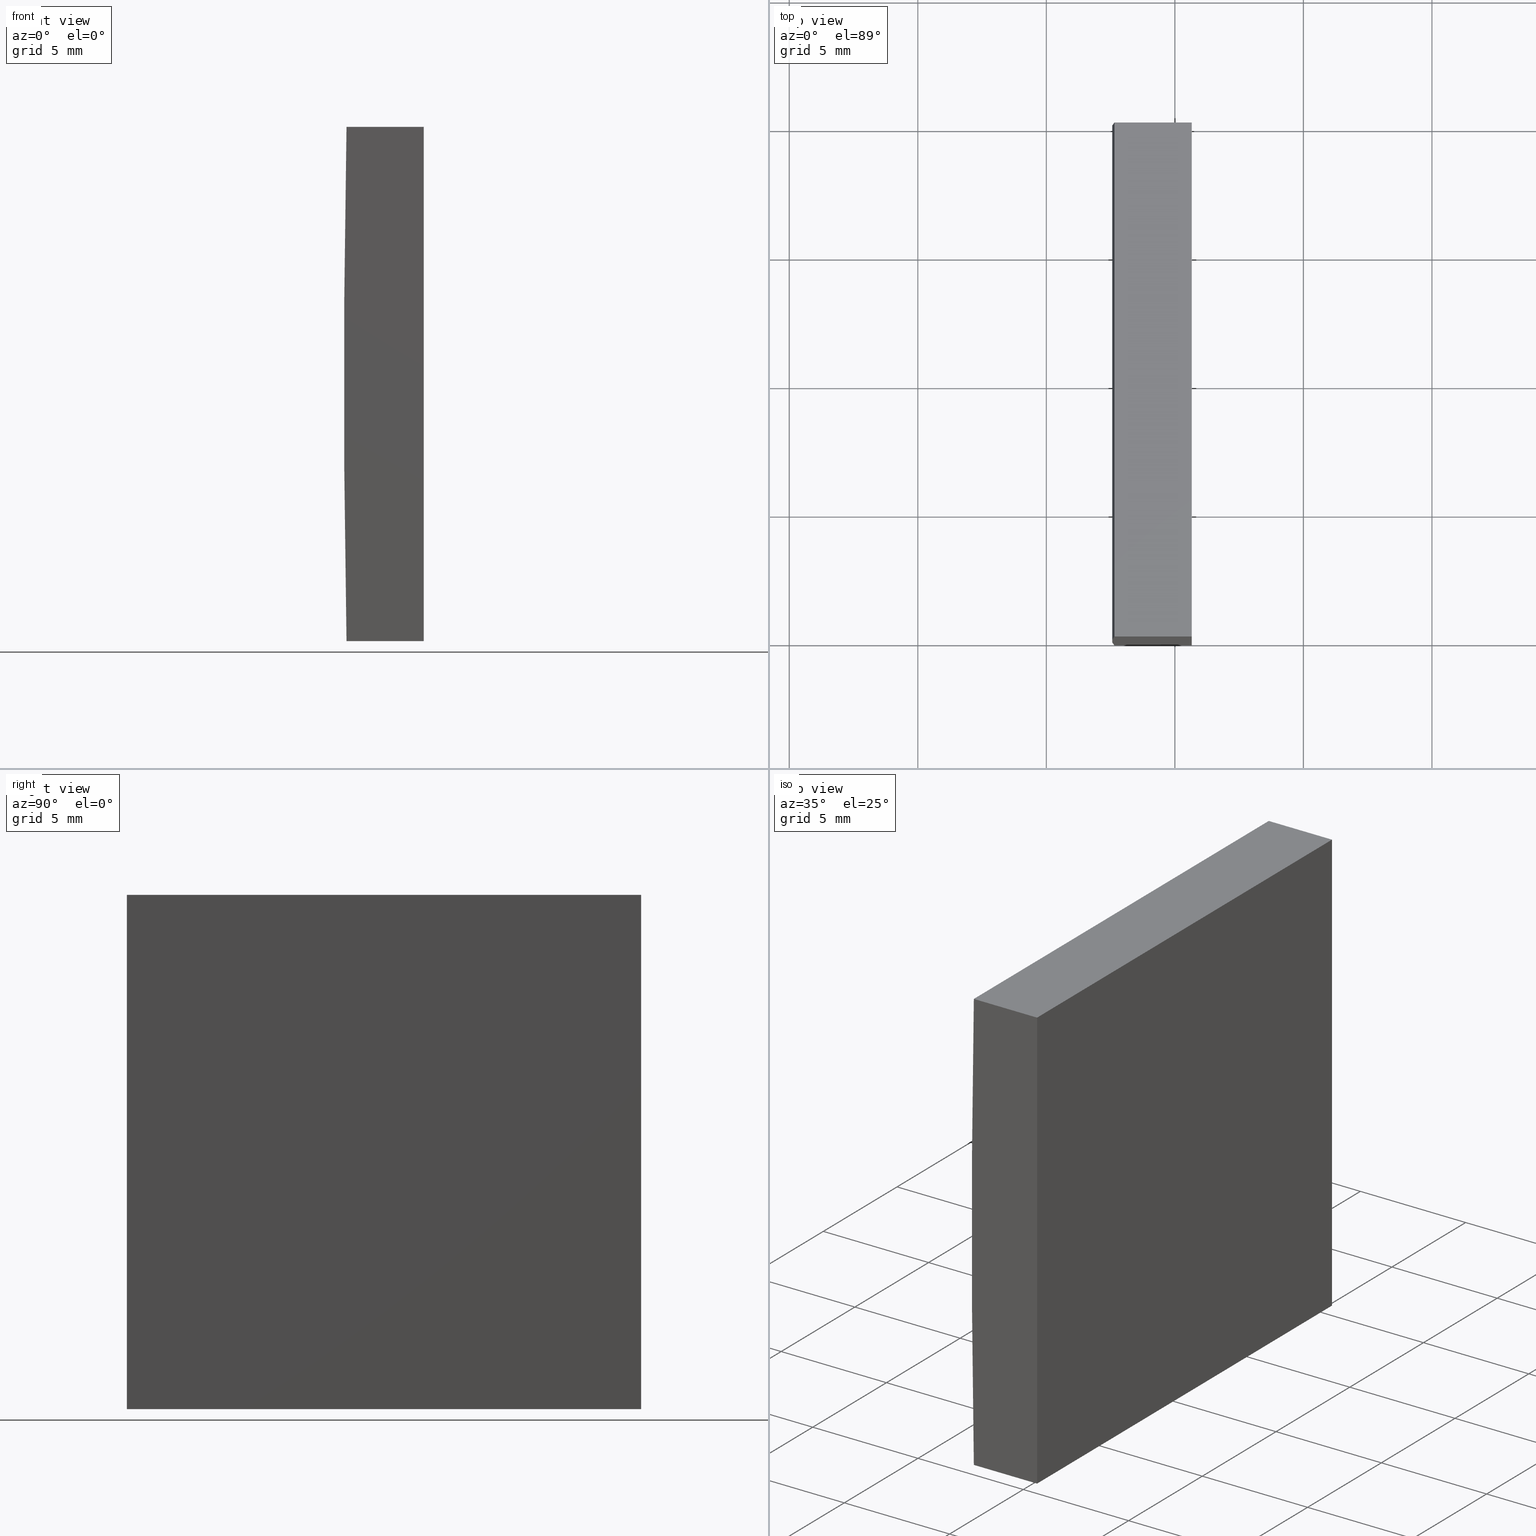
[diagram: canonical four-view strip — front | top / right | iso, engineering-drawing reading convention]
A machine part, canonical four-view strip (front | top / right | iso — engineering-drawing reading convention). The complete STEP part file that produces these views, byte-faithful:
ISO-10303-21;
HEADER;
FILE_DESCRIPTION (( 'STEP AP214' ),
    '1' );
FILE_NAME ('155037.STEP',
    '2019-06-17T07:27:00',
    ( 'user' ),
    ( '΢���й�' ),
    'SwSTEP 2.0',
    'SolidWorks 2016',
    '' );
FILE_SCHEMA (( 'AUTOMOTIVE_DESIGN' ));
ENDSEC;

DATA;
#1 = FACE_OUTER_BOUND ( 'NONE', #31, .T. ) ;
#2 = EDGE_CURVE ( 'NONE', #50, #194, #87, .T. ) ;
#3 = UNCERTAINTY_MEASURE_WITH_UNIT (LENGTH_MEASURE( 1.000000000000000100E-005 ), #176, 'distance_accuracy_value', 'NONE');
#4 = ADVANCED_FACE ( 'NONE', ( #120 ), #67, .F. ) ;
#5 = PRODUCT_DEFINITION_SHAPE ( 'NONE', 'NONE',  #15 ) ;
#6 = EDGE_CURVE ( 'NONE', #66, #189, #25, .T. ) ;
#7 = DIRECTION ( 'NONE',  ( 0.0000000000000000000, 0.0000000000000000000, 1.000000000000000000 ) ) ;
#8 = LINE ( 'NONE', #178, #81 ) ;
#9 = DIRECTION ( 'NONE',  ( -0.0000000000000000000, -1.000000000000000000, -0.0000000000000000000 ) ) ;
#10 =( GEOMETRIC_REPRESENTATION_CONTEXT ( 3 ) GLOBAL_UNCERTAINTY_ASSIGNED_CONTEXT ( ( #152 ) ) GLOBAL_UNIT_ASSIGNED_CONTEXT ( ( #35, #56, #74 ) ) REPRESENTATION_CONTEXT ( 'NONE', 'WORKASPACE' ) );
#11 = EDGE_CURVE ( 'NONE', #127, #183, #116, .T. ) ;
#12 = CARTESIAN_POINT ( 'NONE',  ( -509.3447956651486900, 20.00000000000000000, -10.00000000000000400 ) ) ;
#13 = FACE_OUTER_BOUND ( 'NONE', #42, .T. ) ;
#14 = CARTESIAN_POINT ( 'NONE',  ( -512.3480373813197300, 20.00000000000000000, -10.00000000000000000 ) ) ;
#15 = PRODUCT_DEFINITION ( 'δ֪', '', #169, #34 ) ;
#16 = ORIENTED_EDGE ( 'NONE', *, *, #2, .F. ) ;
#17 = CARTESIAN_POINT ( 'NONE',  ( -512.3480373813197300, 20.00000000000000000, -10.00000000000000000 ) ) ;
#18 = ORIENTED_EDGE ( 'NONE', *, *, #157, .F. ) ;
#19 =( NAMED_UNIT ( * ) PLANE_ANGLE_UNIT ( ) SI_UNIT ( $, .RADIAN. ) );
#20 = PLANE ( 'NONE',  #195 ) ;
#21 = UNCERTAINTY_MEASURE_WITH_UNIT (LENGTH_MEASURE( 1.000000000000000100E-005 ), #199, 'distance_accuracy_value', 'NONE');
#22 = COLOUR_RGB ( '',1.000000000000000000, 1.000000000000000000, 1.000000000000000000 ) ;
#23 = CYLINDRICAL_SURFACE ( 'NONE', #78, 516.7999999999998400 ) ;
#24 = CARTESIAN_POINT ( 'NONE',  ( -509.3447956651486900, 20.00000000000000000, 10.00000000000000000 ) ) ;
#25 = LINE ( 'NONE', #108, #124 ) ;
#26 = FACE_OUTER_BOUND ( 'NONE', #147, .T. ) ;
#27 = DIRECTION ( 'NONE',  ( -0.0000000000000000000, -1.000000000000000000, -0.0000000000000000000 ) ) ;
#28 = DIRECTION ( 'NONE',  ( 0.0000000000000000000, 1.000000000000000000, 0.0000000000000000000 ) ) ;
#29 = PRODUCT_RELATED_PRODUCT_CATEGORY ( 'part', '', ( #82 ) ) ;
#30 = PRODUCT_CONTEXT ( 'NONE', #39, 'mechanical' ) ;
#31 = EDGE_LOOP ( 'NONE', ( #121, #93, #38, #175 ) ) ;
#32 = PRESENTATION_STYLE_ASSIGNMENT (( #117 ) ) ;
#33 = EDGE_CURVE ( 'NONE', #66, #194, #122, .T. ) ;
#34 = PRODUCT_DEFINITION_CONTEXT ( 'detailed design', #187, 'design' ) ;
#35 =( LENGTH_UNIT ( ) NAMED_UNIT ( * ) SI_UNIT ( .MILLI., .METRE. ) );
#36 =( NAMED_UNIT ( * ) SI_UNIT ( $, .STERADIAN. ) SOLID_ANGLE_UNIT ( ) );
#37 = VECTOR ( 'NONE', #196, 1000.000000000000000 ) ;
#38 = ORIENTED_EDGE ( 'NONE', *, *, #162, .T. ) ;
#39 = APPLICATION_CONTEXT ( 'automotive_design' ) ;
#40 = PLANE ( 'NONE',  #71 ) ;
#41 = CARTESIAN_POINT ( 'NONE',  ( 4.355204334851265500, 20.00000000000000000, 4.286263797015675000E-017 ) ) ;
#42 = EDGE_LOOP ( 'NONE', ( #141, #171, #48, #92 ) ) ;
#43 = ORIENTED_EDGE ( 'NONE', *, *, #55, .F. ) ;
#44 = DIRECTION ( 'NONE',  ( -1.000000000000000000, 0.0000000000000000000, 0.0000000000000000000 ) ) ;
#45 = CARTESIAN_POINT ( 'NONE',  ( -512.3480373813197300, 0.0000000000000000000, 10.00000000000000000 ) ) ;
#46 = CARTESIAN_POINT ( 'NONE',  ( -509.3447956651486900, 20.00000000000000000, 10.00000000000000000 ) ) ;
#47 = DIRECTION ( 'NONE',  ( 1.000000000000000000, 0.0000000000000000000, 0.0000000000000000000 ) ) ;
#48 = ORIENTED_EDGE ( 'NONE', *, *, #11, .F. ) ;
#49 = CARTESIAN_POINT ( 'NONE',  ( -512.3480373813197300, 0.0000000000000000000, 10.00000000000000000 ) ) ;
#50 = VERTEX_POINT ( 'NONE', #64 ) ;
#51 = CIRCLE ( 'NONE', #173, 516.7999999999998400 ) ;
#52 = ORIENTED_EDGE ( 'NONE', *, *, #2, .T. ) ;
#53 = ORIENTED_EDGE ( 'NONE', *, *, #109, .F. ) ;
#54 = VECTOR ( 'NONE', #88, 1000.000000000000000 ) ;
#55 = EDGE_CURVE ( 'NONE', #144, #180, #8, .T. ) ;
#56 =( NAMED_UNIT ( * ) PLANE_ANGLE_UNIT ( ) SI_UNIT ( $, .RADIAN. ) );
#57 = ORIENTED_EDGE ( 'NONE', *, *, #63, .T. ) ;
#58 = MECHANICAL_DESIGN_GEOMETRIC_PRESENTATION_REPRESENTATION (  '', ( #95 ), #179 ) ;
#59 = ADVANCED_FACE ( 'NONE', ( #155 ), #114, .F. ) ;
#60 = CARTESIAN_POINT ( 'NONE',  ( -512.3480373813197300, 20.00000000000000000, 10.00000000000000000 ) ) ;
#61 = ADVANCED_FACE ( 'NONE', ( #1 ), #40, .T. ) ;
#62 = SURFACE_STYLE_USAGE ( .BOTH. , #129 ) ;
#63 = EDGE_CURVE ( 'NONE', #194, #144, #164, .T. ) ;
#64 = CARTESIAN_POINT ( 'NONE',  ( -512.3480373813197300, 0.0000000000000000000, -10.00000000000000000 ) ) ;
#65 = AXIS2_PLACEMENT_3D ( 'NONE', #60, #136, #86 ) ;
#66 = VERTEX_POINT ( 'NONE', #110 ) ;
#67 = PLANE ( 'NONE',  #201 ) ;
#68 = CLOSED_SHELL ( 'NONE', ( #113, #59, #146, #98, #61, #4 ) ) ;
#69 = ORIENTED_EDGE ( 'NONE', *, *, #33, .T. ) ;
#70 = FILL_AREA_STYLE_COLOUR ( '', #22 ) ;
#71 = AXIS2_PLACEMENT_3D ( 'NONE', #158, #182, #165 ) ;
#72 = DIRECTION ( 'NONE',  ( 1.155234003734118200E-015, -0.0000000000000000000, 1.000000000000000000 ) ) ;
#73 = AXIS2_PLACEMENT_3D ( 'NONE', #130, #97, #47 ) ;
#74 =( NAMED_UNIT ( * ) SI_UNIT ( $, .STERADIAN. ) SOLID_ANGLE_UNIT ( ) );
#75 = LINE ( 'NONE', #46, #54 ) ;
#76 = ORIENTED_EDGE ( 'NONE', *, *, #107, .T. ) ;
#77 =( NAMED_UNIT ( * ) PLANE_ANGLE_UNIT ( ) SI_UNIT ( $, .RADIAN. ) );
#78 = AXIS2_PLACEMENT_3D ( 'NONE', #41, #9, #197 ) ;
#79 = DIRECTION ( 'NONE',  ( -0.0000000000000000000, -0.0000000000000000000, -1.000000000000000000 ) ) ;
#80 = CARTESIAN_POINT ( 'NONE',  ( 4.355204334851265500, 0.0000000000000000000, 4.286263797015675000E-017 ) ) ;
#81 = VECTOR ( 'NONE', #79, 1000.000000000000000 ) ;
#82 = PRODUCT ( '155037', '155037', '', ( #30 ) ) ;
#83 = DIRECTION ( 'NONE',  ( 0.0000000000000000000, 0.0000000000000000000, 1.000000000000000000 ) ) ;
#84 = PRESENTATION_LAYER_ASSIGNMENT (  '', '', ( #95 ) ) ;
#85 = MECHANICAL_DESIGN_GEOMETRIC_PRESENTATION_REPRESENTATION (  '', ( #133 ), #106 ) ;
#86 = DIRECTION ( 'NONE',  ( -1.000000000000000000, 0.0000000000000000000, -0.0000000000000000000 ) ) ;
#87 = CIRCLE ( 'NONE', #170, 516.7999999999998400 ) ;
#88 = DIRECTION ( 'NONE',  ( -0.0000000000000000000, -1.000000000000000000, -0.0000000000000000000 ) ) ;
#89 = CARTESIAN_POINT ( 'NONE',  ( -509.3447956651486900, 0.0000000000000000000, 10.00000000000000000 ) ) ;
#90 = CARTESIAN_POINT ( 'NONE',  ( -509.3447956651486900, 0.0000000000000000000, -10.00000000000000400 ) ) ;
#91 = DIRECTION ( 'NONE',  ( -0.0000000000000000000, -1.000000000000000000, -0.0000000000000000000 ) ) ;
#92 = ORIENTED_EDGE ( 'NONE', *, *, #109, .T. ) ;
#93 = ORIENTED_EDGE ( 'NONE', *, *, #6, .T. ) ;
#94 = SURFACE_STYLE_FILL_AREA ( #198 ) ;
#95 = STYLED_ITEM ( 'NONE', ( #32 ), #202 ) ;
#96 = ORIENTED_EDGE ( 'NONE', *, *, #118, .T. ) ;
#97 = DIRECTION ( 'NONE',  ( 0.0000000000000000000, 0.0000000000000000000, 1.000000000000000000 ) ) ;
#98 = ADVANCED_FACE ( 'NONE', ( #13 ), #174, .F. ) ;
#99 = DIRECTION ( 'NONE',  ( 0.0000000000000000000, 1.000000000000000000, 0.0000000000000000000 ) ) ;
#100 = ADVANCED_BREP_SHAPE_REPRESENTATION ( '155037', ( #202, #73 ), #10 ) ;
#101 = DIRECTION ( 'NONE',  ( 1.000000000000000000, 0.0000000000000000000, -1.155234003734118200E-015 ) ) ;
#102 = ORIENTED_EDGE ( 'NONE', *, *, #118, .F. ) ;
#103 = CARTESIAN_POINT ( 'NONE',  ( 4.355204334851265500, 0.0000000000000000000, 4.286263797015675000E-017 ) ) ;
#104 = FILL_AREA_STYLE ('',( #70 ) ) ;
#105 = DIRECTION ( 'NONE',  ( -1.000000000000000000, -0.0000000000000000000, 1.155234003734118200E-015 ) ) ;
#106 =( GEOMETRIC_REPRESENTATION_CONTEXT ( 3 ) GLOBAL_UNCERTAINTY_ASSIGNED_CONTEXT ( ( #3 ) ) GLOBAL_UNIT_ASSIGNED_CONTEXT ( ( #176, #77, #36 ) ) REPRESENTATION_CONTEXT ( 'NONE', 'WORKASPACE' ) );
#107 = EDGE_CURVE ( 'NONE', #183, #50, #184, .T. ) ;
#108 = CARTESIAN_POINT ( 'NONE',  ( -512.3480373813197300, 20.00000000000000000, 10.00000000000000000 ) ) ;
#109 = EDGE_CURVE ( 'NONE', #127, #180, #142, .T. ) ;
#110 = CARTESIAN_POINT ( 'NONE',  ( -512.3480373813197300, 20.00000000000000000, 10.00000000000000000 ) ) ;
#111 = CARTESIAN_POINT ( 'NONE',  ( -512.3480373813197300, 20.00000000000000000, 10.00000000000000000 ) ) ;
#112 = VECTOR ( 'NONE', #105, 1000.000000000000000 ) ;
#113 = ADVANCED_FACE ( 'NONE', ( #203 ), #23, .T. ) ;
#114 = PLANE ( 'NONE',  #65 ) ;
#115 = CARTESIAN_POINT ( 'NONE',  ( -512.3480373813197300, 20.00000000000000000, -10.00000000000000000 ) ) ;
#116 = LINE ( 'NONE', #149, #112 ) ;
#117 = SURFACE_STYLE_USAGE ( .BOTH. , #134 ) ;
#118 = EDGE_CURVE ( 'NONE', #189, #144, #75, .T. ) ;
#119 = EDGE_LOOP ( 'NONE', ( #16, #18, #43, #167 ) ) ;
#120 = FACE_OUTER_BOUND ( 'NONE', #119, .T. ) ;
#121 = ORIENTED_EDGE ( 'NONE', *, *, #156, .T. ) ;
#122 = LINE ( 'NONE', #111, #132 ) ;
#123 = DIRECTION ( 'NONE',  ( 0.0000000000000000000, 1.000000000000000000, 0.0000000000000000000 ) ) ;
#124 = VECTOR ( 'NONE', #172, 1000.000000000000000 ) ;
#125 = COLOUR_RGB ( '',1.000000000000000000, 1.000000000000000000, 1.000000000000000000 ) ;
#126 = CARTESIAN_POINT ( 'NONE',  ( -509.3447956651486900, 20.00000000000000000, -10.00000000000000400 ) ) ;
#127 = VERTEX_POINT ( 'NONE', #181 ) ;
#128 = AXIS2_PLACEMENT_3D ( 'NONE', #14, #72, #101 ) ;
#129 = SURFACE_SIDE_STYLE ('',( #135 ) ) ;
#130 = CARTESIAN_POINT ( 'NONE',  ( 0.0000000000000000000, 0.0000000000000000000, 0.0000000000000000000 ) ) ;
#131 = DIRECTION ( 'NONE',  ( -0.0000000000000000000, -1.000000000000000000, -0.0000000000000000000 ) ) ;
#132 = VECTOR ( 'NONE', #131, 1000.000000000000000 ) ;
#133 = STYLED_ITEM ( 'NONE', ( #192 ), #100 ) ;
#134 = SURFACE_SIDE_STYLE ('',( #94 ) ) ;
#135 = SURFACE_STYLE_FILL_AREA ( #104 ) ;
#136 = DIRECTION ( 'NONE',  ( 0.0000000000000000000, 0.0000000000000000000, -1.000000000000000000 ) ) ;
#137 = VECTOR ( 'NONE', #27, 1000.000000000000000 ) ;
#138 =( NAMED_UNIT ( * ) SI_UNIT ( $, .STERADIAN. ) SOLID_ANGLE_UNIT ( ) );
#139 = LINE ( 'NONE', #166, #37 ) ;
#140 = DIRECTION ( 'NONE',  ( 0.0000000000000000000, 0.0000000000000000000, 1.000000000000000000 ) ) ;
#141 = ORIENTED_EDGE ( 'NONE', *, *, #157, .T. ) ;
#142 = LINE ( 'NONE', #126, #137 ) ;
#143 = ORIENTED_EDGE ( 'NONE', *, *, #55, .T. ) ;
#144 = VERTEX_POINT ( 'NONE', #89 ) ;
#145 = PRESENTATION_LAYER_ASSIGNMENT (  '', '', ( #133 ) ) ;
#146 = ADVANCED_FACE ( 'NONE', ( #26 ), #20, .F. ) ;
#147 = EDGE_LOOP ( 'NONE', ( #143, #53, #190, #96 ) ) ;
#148 = VECTOR ( 'NONE', #185, 1000.000000000000000 ) ;
#149 = CARTESIAN_POINT ( 'NONE',  ( -512.3480373813197300, 20.00000000000000000, -10.00000000000000000 ) ) ;
#150 = APPLICATION_PROTOCOL_DEFINITION ( 'draft international standard', 'automotive_design', 1998, #39 ) ;
#151 = CARTESIAN_POINT ( 'NONE',  ( 4.355204334851265500, 20.00000000000000000, 4.286263797015675000E-017 ) ) ;
#152 = UNCERTAINTY_MEASURE_WITH_UNIT (LENGTH_MEASURE( 1.000000000000000100E-005 ), #35, 'distance_accuracy_value', 'NONE');
#153 = LINE ( 'NONE', #161, #148 ) ;
#154 = EDGE_LOOP ( 'NONE', ( #57, #102, #163, #69 ) ) ;
#155 = FACE_OUTER_BOUND ( 'NONE', #154, .T. ) ;
#156 = EDGE_CURVE ( 'NONE', #183, #66, #51, .T. ) ;
#157 = EDGE_CURVE ( 'NONE', #180, #50, #153, .T. ) ;
#158 = CARTESIAN_POINT ( 'NONE',  ( 4.355204334851265500, 20.00000000000000000, 4.286263797015675000E-017 ) ) ;
#159 = SHAPE_DEFINITION_REPRESENTATION ( #5, #100 ) ;
#160 = APPLICATION_PROTOCOL_DEFINITION ( 'draft international standard', 'automotive_design', 1998, #187 ) ;
#161 = CARTESIAN_POINT ( 'NONE',  ( -512.3480373813197300, 0.0000000000000000000, -10.00000000000000000 ) ) ;
#162 = EDGE_CURVE ( 'NONE', #189, #127, #139, .T. ) ;
#163 = ORIENTED_EDGE ( 'NONE', *, *, #6, .F. ) ;
#164 = LINE ( 'NONE', #45, #188 ) ;
#165 = DIRECTION ( 'NONE',  ( 0.0000000000000000000, -0.0000000000000000000, 1.000000000000000000 ) ) ;
#166 = CARTESIAN_POINT ( 'NONE',  ( -509.3447956651486900, 20.00000000000000000, -10.00000000000000400 ) ) ;
#167 = ORIENTED_EDGE ( 'NONE', *, *, #63, .F. ) ;
#168 = ORIENTED_EDGE ( 'NONE', *, *, #33, .F. ) ;
#169 = PRODUCT_DEFINITION_FORMATION_WITH_SPECIFIED_SOURCE ( '�κ�', '', #82, .NOT_KNOWN. ) ;
#170 = AXIS2_PLACEMENT_3D ( 'NONE', #103, #28, #83 ) ;
#171 = ORIENTED_EDGE ( 'NONE', *, *, #107, .F. ) ;
#172 = DIRECTION ( 'NONE',  ( 1.000000000000000000, 0.0000000000000000000, 0.0000000000000000000 ) ) ;
#173 = AXIS2_PLACEMENT_3D ( 'NONE', #151, #99, #7 ) ;
#174 = PLANE ( 'NONE',  #128 ) ;
#175 = ORIENTED_EDGE ( 'NONE', *, *, #11, .T. ) ;
#176 =( LENGTH_UNIT ( ) NAMED_UNIT ( * ) SI_UNIT ( .MILLI., .METRE. ) );
#177 = DIRECTION ( 'NONE',  ( 0.0000000000000000000, -0.0000000000000000000, 1.000000000000000000 ) ) ;
#178 = CARTESIAN_POINT ( 'NONE',  ( -509.3447956651486900, 0.0000000000000000000, -10.00000000000000400 ) ) ;
#179 =( GEOMETRIC_REPRESENTATION_CONTEXT ( 3 ) GLOBAL_UNCERTAINTY_ASSIGNED_CONTEXT ( ( #21 ) ) GLOBAL_UNIT_ASSIGNED_CONTEXT ( ( #199, #19, #138 ) ) REPRESENTATION_CONTEXT ( 'NONE', 'WORKASPACE' ) );
#180 = VERTEX_POINT ( 'NONE', #90 ) ;
#181 = CARTESIAN_POINT ( 'NONE',  ( -509.3447956651486900, 20.00000000000000000, -10.00000000000000400 ) ) ;
#182 = DIRECTION ( 'NONE',  ( 0.0000000000000000000, 1.000000000000000000, 0.0000000000000000000 ) ) ;
#183 = VERTEX_POINT ( 'NONE', #17 ) ;
#184 = LINE ( 'NONE', #115, #191 ) ;
#185 = DIRECTION ( 'NONE',  ( -1.000000000000000000, -0.0000000000000000000, 1.155234003734118200E-015 ) ) ;
#186 = DIRECTION ( 'NONE',  ( 1.000000000000000000, 0.0000000000000000000, 0.0000000000000000000 ) ) ;
#187 = APPLICATION_CONTEXT ( 'automotive_design' ) ;
#188 = VECTOR ( 'NONE', #186, 1000.000000000000000 ) ;
#189 = VERTEX_POINT ( 'NONE', #24 ) ;
#190 = ORIENTED_EDGE ( 'NONE', *, *, #162, .F. ) ;
#191 = VECTOR ( 'NONE', #91, 1000.000000000000000 ) ;
#192 = PRESENTATION_STYLE_ASSIGNMENT (( #62 ) ) ;
#193 = EDGE_LOOP ( 'NONE', ( #52, #168, #200, #76 ) ) ;
#194 = VERTEX_POINT ( 'NONE', #49 ) ;
#195 = AXIS2_PLACEMENT_3D ( 'NONE', #12, #44, #140 ) ;
#196 = DIRECTION ( 'NONE',  ( -0.0000000000000000000, -0.0000000000000000000, -1.000000000000000000 ) ) ;
#197 = DIRECTION ( 'NONE',  ( 0.0000000000000000000, 0.0000000000000000000, -1.000000000000000000 ) ) ;
#198 = FILL_AREA_STYLE ('',( #204 ) ) ;
#199 =( LENGTH_UNIT ( ) NAMED_UNIT ( * ) SI_UNIT ( .MILLI., .METRE. ) );
#200 = ORIENTED_EDGE ( 'NONE', *, *, #156, .F. ) ;
#201 = AXIS2_PLACEMENT_3D ( 'NONE', #80, #123, #177 ) ;
#202 = MANIFOLD_SOLID_BREP ( '͹̨-����1', #68 ) ;
#203 = FACE_OUTER_BOUND ( 'NONE', #193, .T. ) ;
#204 = FILL_AREA_STYLE_COLOUR ( '', #125 ) ;
ENDSEC;
END-ISO-10303-21;
